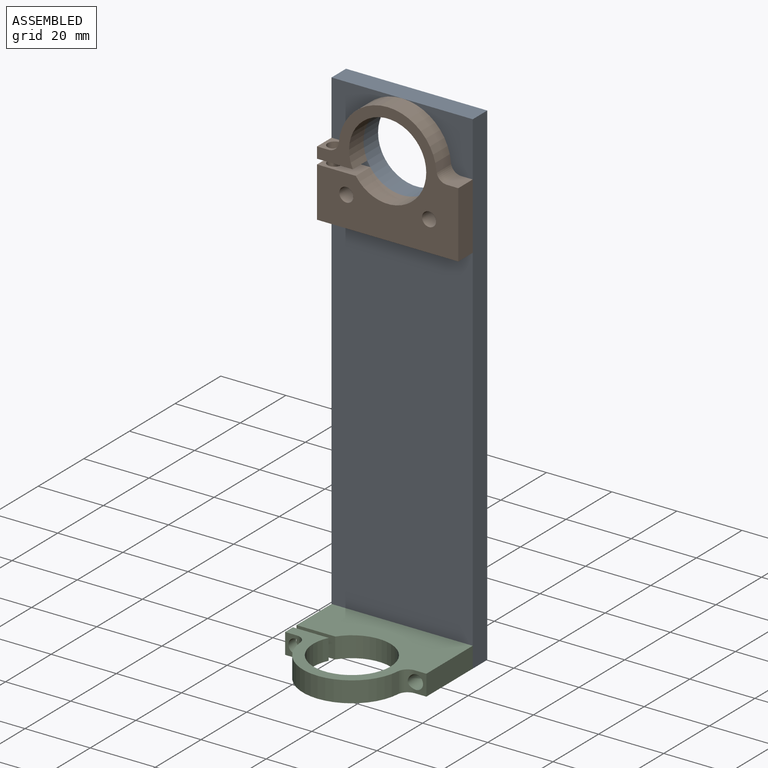
[diagram: assembled view]
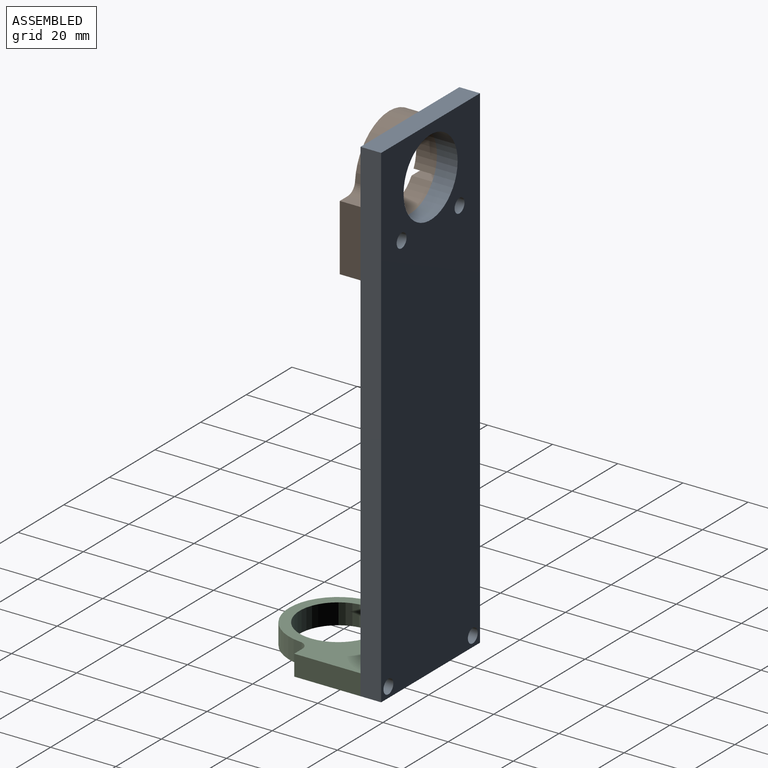
[diagram: assembled view, second angle]
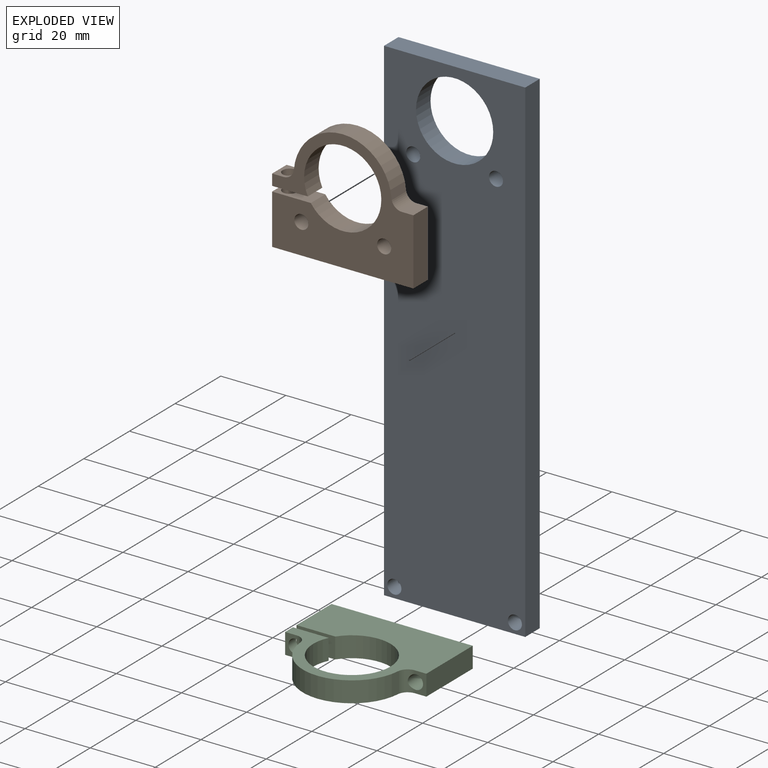
[diagram: exploded view]
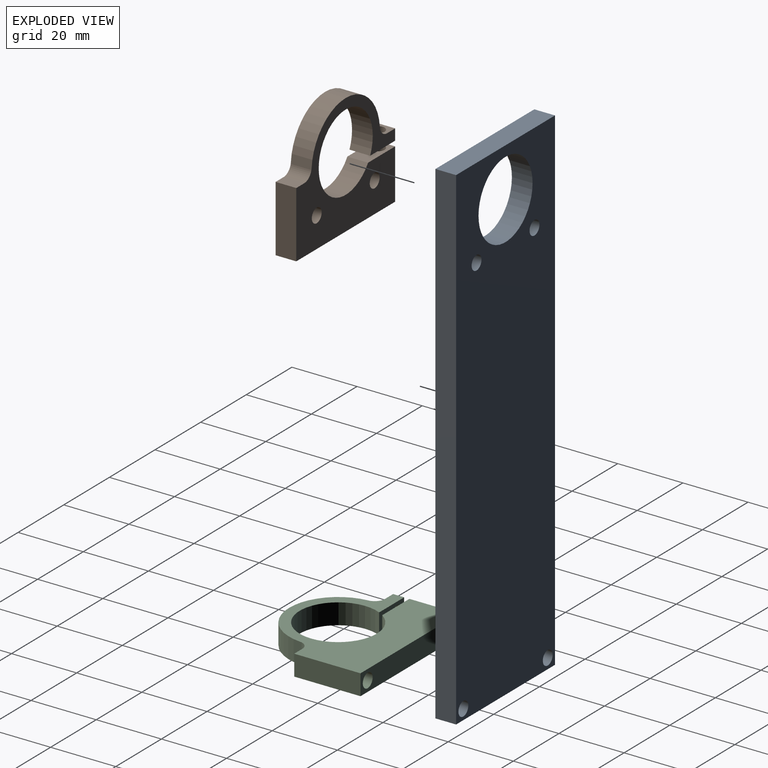
[diagram: exploded view, second angle]
ASSEMBLY  parts=3 mates=2
PART A: 11 faces, bbox 43.3x6.4x152.4 mm
  f0: plane 152.4x6.35mm, normal (1,0,0), area 967.7mm2, adj f1,f5,f9,f10
  f1: plane 43.34x6.35mm, normal (0,0,1), area 275.2mm2, adj f0,f2,f9,f10
  f2: plane 152.4x6.35mm, normal (-1,0,0), area 967.7mm2, adj f1,f5,f9,f10
  f3: cylinder r=2.16mm len=6.35mm, axis (0,1,0), area 86.1mm2, adj f9,f10
  f4: cylinder r=11.85mm len=23.7mm, axis (0,1,0), area 472.8mm2, adj f9,f10
  f5: plane 43.34x6.35mm, normal (0,0,-1), area 275.2mm2, adj f0,f2,f9,f10
  f6: cylinder r=2.16mm len=6.35mm, axis (0,1,0), area 86.1mm2, adj f9,f10
  f7: cylinder r=2.16mm len=6.35mm, axis (0,1,0), area 86.1mm2, adj f9,f10
  f8: cylinder r=2.16mm len=6.35mm, axis (0,1,0), area 86.1mm2, adj f9,f10
  f9: plane 152.4x43.34mm, normal (0,-1,0), area 6105.5mm2, adj f0,f1,f2,f3,f4,f5,f6,f7
  f10: plane 152.4x43.34mm, normal (0,1,0), area 6105.5mm2, adj f0,f1,f2,f3,f4,f5,f6,f7
PART B: 18 faces, bbox 43.3x6.4x37 mm
  f0: cylinder r=3.17mm len=6.35mm, axis (0,1,0), area 24mm2, adj f1,f12,f14,f15,f17
  f1: plane 6.35x3.53mm, normal (0,0,1), area 13.6mm2, adj f0,f2,f14,f15,f17
  f2: plane 6.35x3.41mm, normal (-1,0,0), area 21.6mm2, adj f1,f3,f14,f15
  f3: plane 10.97x6.35mm, normal (0,0,-1), area 55mm2, adj f2,f4,f14,f15,f17
  f4: cylinder r=11.85mm len=23.7mm, axis (0,1,0), area 461.1mm2, adj f3,f5,f14,f15
  f5: plane 11.88x6.35mm, normal (0,0,1), area 60.8mm2, adj f4,f6,f14,f15,f16
  f6: plane 15.34x6.35mm, normal (-1,0,0), area 97.4mm2, adj f5,f7,f14,f15
  f7: plane 43.34x6.35mm, normal (0,0,-1), area 260.6mm2, adj f6,f8,f14,f15,f16
  f8: plane 20.34x6.35mm, normal (1,0,0), area 129.1mm2, adj f7,f9,f14,f15
  f9: plane 6.35x3.53mm, normal (0,0,1), area 22.4mm2, adj f8,f10,f14,f15
  f10: cylinder r=3.17mm len=6.35mm, axis (0,1,0), area 30mm2, adj f9,f12,f14,f15
  f11: cylinder r=2.16mm len=6.35mm, axis (0,1,0), area 86.1mm2, adj f14,f15
  f12: cylinder r=15.02mm len=29.95mm, axis (0,1,0), area 284mm2, adj f0,f10,f14,f15
  f13: cylinder r=2.16mm len=6.35mm, axis (0,1,0), area 86.1mm2, adj f14,f15
  f14: plane 43.34x37.04mm, normal (0,-1,0), area 802.1mm2, adj f0,f1,f2,f3,f4,f5,f6,f7
  f15: plane 43.34x37.04mm, normal (0,1,0), area 802.1mm2, adj f0,f1,f2,f3,f4,f5,f6,f7
  f16: cylinder r=2.16mm len=15.34mm, axis (0,0,1), area 208.1mm2, adj f5,f7
  f17: cylinder r=2.16mm len=4.32mm, axis (0,0,1), area 47.9mm2, adj f0,f1,f3
PART C: 17 faces, bbox 43.3x6.4x37 mm
  f0: cylinder r=3.17mm len=6.35mm, axis (0,1,0), area 24mm2, adj f1,f11,f12,f13,f16
  f1: plane 6.35x3.53mm, normal (0,0,1), area 13.6mm2, adj f0,f2,f12,f13,f16
  f2: plane 6.35x3.41mm, normal (-1,0,0), area 21.6mm2, adj f1,f3,f12,f13
  f3: plane 10.97x6.35mm, normal (0,0,-1), area 55mm2, adj f2,f4,f12,f13,f16
  f4: cylinder r=11.85mm len=23.7mm, axis (0,1,0), area 461.1mm2, adj f3,f5,f12,f13
  f5: plane 11.88x6.35mm, normal (0,0,1), area 60.8mm2, adj f4,f6,f12,f13,f15
  f6: plane 15.34x6.35mm, normal (-1,0,0), area 97.4mm2, adj f5,f7,f12,f13
  f7: plane 43.34x6.35mm, normal (0,0,-1), area 245.9mm2, adj f6,f8,f12,f13,f14,f15
  f8: plane 20.34x6.35mm, normal (1,0,0), area 129.1mm2, adj f7,f9,f12,f13
  f9: plane 6.35x3.53mm, normal (0,0,1), area 13.6mm2, adj f8,f10,f12,f13,f14
  f10: cylinder r=3.17mm len=6.35mm, axis (0,1,0), area 24mm2, adj f9,f11,f12,f13,f14
  f11: cylinder r=15.02mm len=29.95mm, axis (0,1,0), area 284mm2, adj f0,f10,f12,f13
  f12: plane 43.34x37.04mm, normal (0,-1,0), area 831.4mm2, adj f0,f1,f2,f3,f4,f5,f6,f7
  f13: plane 43.34x37.04mm, normal (0,1,0), area 831.4mm2, adj f0,f1,f2,f3,f4,f5,f6,f7
  f14: cylinder r=2.16mm len=20.9mm, axis (0,0,1), area 277.6mm2, adj f7,f9,f10
  f15: cylinder r=2.16mm len=15.34mm, axis (0,0,1), area 208.2mm2, adj f5,f7
  f16: cylinder r=2.16mm len=4.32mm, axis (0,0,1), area 47.9mm2, adj f0,f1,f3
PLACE A t=(-6.89,-4.2,-0.33)mm
PLACE B t=(-6.89,-10.55,60.84)mm
PLACE C rot(axis=(1,0,0),90deg) t=(-6.89,-32.57,-70.18)mm
MATE fastened C.f14 <-> A.f6  axis (0,1,0) through (11.6,-10.55,-73.36)mm
MATE fastened B.f13 <-> A.f8  axis (0,1,0) through (5.81,-10.55,48.14)mm
